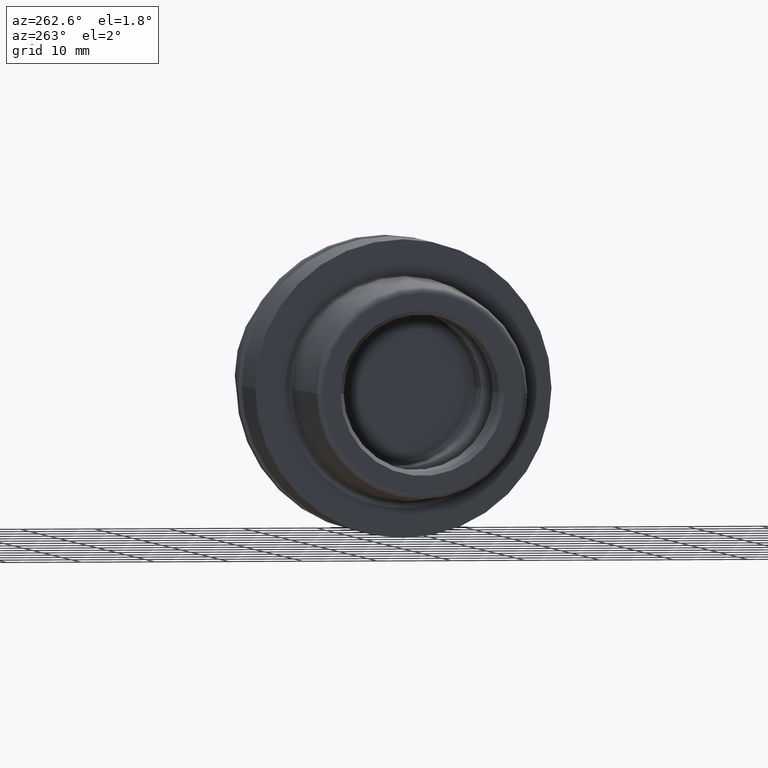
[diagram: clean part render]
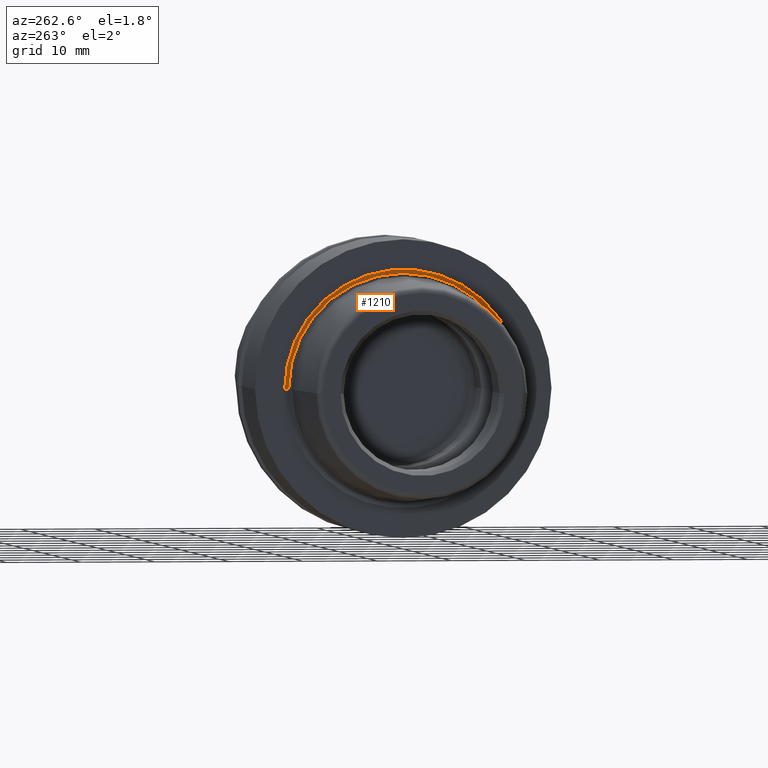
[diagram: same view with one face highlighted and labeled with its STEP entity id]
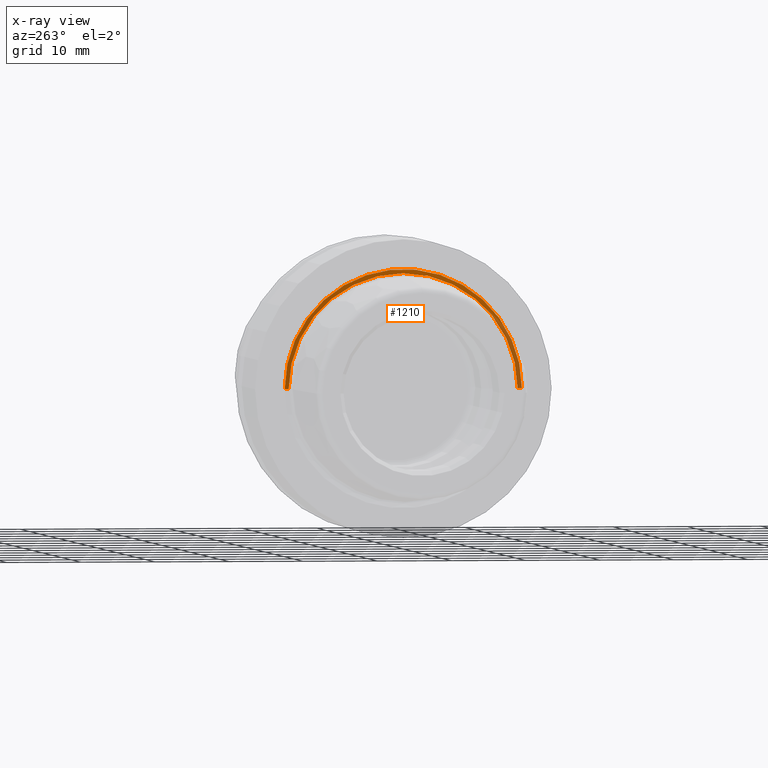
[diagram: x-ray of the same camera — body ghosted, the highlighted face saturated]
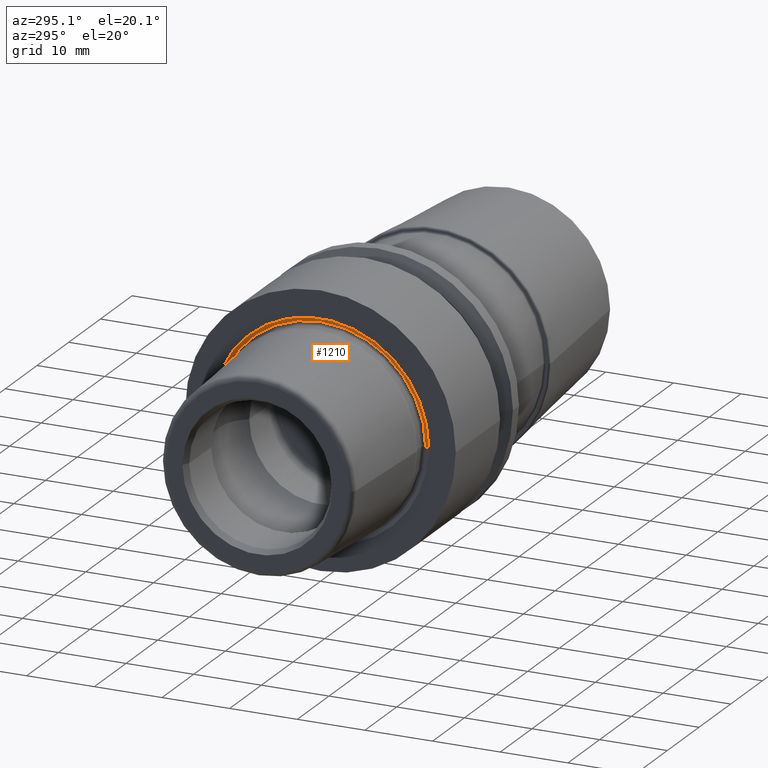
[diagram: same view with one face highlighted and labeled with its STEP entity id]
A machine part, auxiliary view. The second image highlights one B-rep face of the part: STEP entity #1210.
The next image is the same camera in x-ray: the body ghosted, the highlighted face saturated — about 22% of this face is hidden behind the body in this view.
A second angle (auxiliary view) of the same face is appended — the face is thin or edge-on in the first view.
In plain terms, the highlighted conical surface has half-angle 68.5 deg.
Its self-contained STEP definition (entity closure, byte-faithful):
#281=CARTESIAN_POINT('',(2.179898639175E-1,0.E0,0.E0));
#282=DIRECTION('',(-1.E0,0.E0,0.E0));
#283=DIRECTION('',(0.E0,-1.E0,0.E0));
#284=AXIS2_PLACEMENT_3D('',#281,#282,#283);
#286=DIRECTION('',(3.665012267243E-1,9.304175679820E-1,0.E0));
#287=VECTOR('',#286,5.947861781141E-1);
#288=CARTESIAN_POINT('',(0.E0,-1.60037E1,0.E0));
#289=LINE('',#288,#287);
#290=DIRECTION('',(3.665012267243E-1,-9.304175679820E-1,0.E0));
#291=VECTOR('',#290,5.947861781141E-1);
#292=CARTESIAN_POINT('',(0.E0,1.60037E1,0.E0));
#293=LINE('',#292,#291);
#304=CARTESIAN_POINT('',(0.E0,0.E0,0.E0));
#305=DIRECTION('',(-1.E0,0.E0,0.E0));
#306=DIRECTION('',(0.E0,-1.E0,0.E0));
#307=AXIS2_PLACEMENT_3D('',#304,#305,#306);
#628=CARTESIAN_POINT('',(2.179898639175E-1,-1.545030049069E1,0.E0));
#630=VERTEX_POINT('',#628);
#636=CARTESIAN_POINT('',(2.179898639175E-1,1.545030049069E1,0.E0));
#638=VERTEX_POINT('',#636);
#652=CARTESIAN_POINT('',(0.E0,-1.60037E1,0.E0));
#653=VERTEX_POINT('',#652);
#654=CARTESIAN_POINT('',(0.E0,1.60037E1,0.E0));
#655=VERTEX_POINT('',#654);
#1196=CARTESIAN_POINT('',(1.089949319587E-1,0.E0,0.E0));
#1197=DIRECTION('',(-1.E0,0.E0,0.E0));
#1198=DIRECTION('',(0.E0,1.E0,0.E0));
#1199=AXIS2_PLACEMENT_3D('',#1196,#1197,#1198);
#1200=CONICAL_SURFACE('',#1199,1.572700024534E1,6.85E1);
#1202=ORIENTED_EDGE('',*,*,#1201,.T.);
#1203=ORIENTED_EDGE('',*,*,#1191,.T.);
#1205=ORIENTED_EDGE('',*,*,#1204,.F.);
#1207=ORIENTED_EDGE('',*,*,#1206,.F.);
#1208=EDGE_LOOP('',(#1202,#1203,#1205,#1207));
#1209=FACE_OUTER_BOUND('',#1208,.F.);
#1210=ADVANCED_FACE('',(#1209),#1200,.F.);
#285=CIRCLE('',#284,1.545030049069E1);
#308=CIRCLE('',#307,1.60037E1);
#1191=EDGE_CURVE('',#630,#638,#285,.T.);
#1201=EDGE_CURVE('',#653,#630,#289,.T.);
#1204=EDGE_CURVE('',#655,#638,#293,.T.);
#1206=EDGE_CURVE('',#653,#655,#308,.T.);